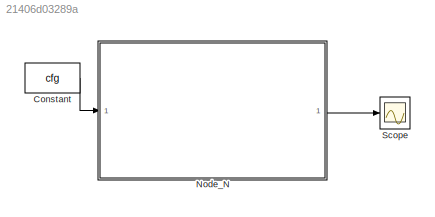
MODEL slx_21406d03289a
KIND model
CONFIG AbsTol = auto
CONFIG EnableMultiTasking = off
CONFIG FixedStep = 0.5e-3
CONFIG MaxStep = auto
CONFIG MinStep = auto
CONFIG RelTol = 1e-3
CONFIG SampleTimeConstraint = Unconstrained
CONFIG SolverName = ode1
CONFIG StartTime = 0.0
CONFIG StopTime = 10.0
WORKSPACE source: mxarray member
WORKSPACE cfg: object (value not decoded)
WORKSPACE cfg_test: Simulink.Parameter (value not decoded)
BLOCK [Constant] Constant
  OutDataTypeStr = Bus: Config_N
  SampleTime = -1
  Value = cfg
BLOCK [ModelReference] Node_N
  ModelNameDialog = Node_N
  ModelReferenceVersion = 1.106
BLOCK [Scope] Scope
  Floating = off
  NumInputPorts = 1
  ScopeSpecificationString = Simulink.scopes.TimeScopeBlockCfg('CurrentConfiguration', extmgr.ConfigurationSet(extmgr.Configuration('Core','General UI',true),extmgr.Configuration('Core','Source UI',true),extmgr.Configuration('Sources','WiredSimulink',true),extmgr.Configuration('Visuals','Time Domain',true,'SerializedDisplays',{struct('MinYLimReal','-11.14837','MaxYLimReal','96.72766','YLabelReal','','MinYLimMag','0.00000','Ma...<+1476ch>
LINE Constant:1 -> Node_N:1
LINE Node_N:1 -> Scope:1
